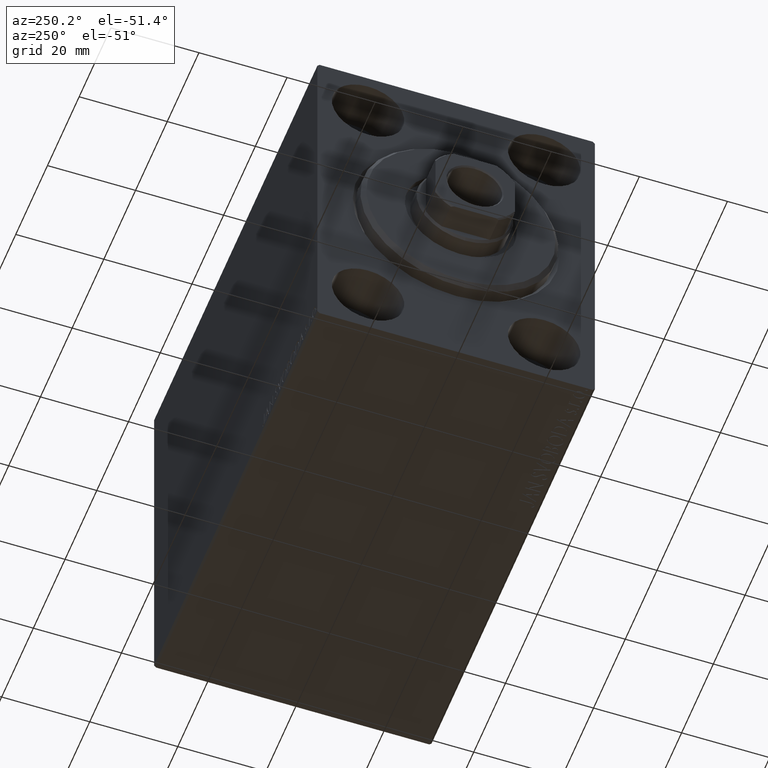
[diagram: clean part render]
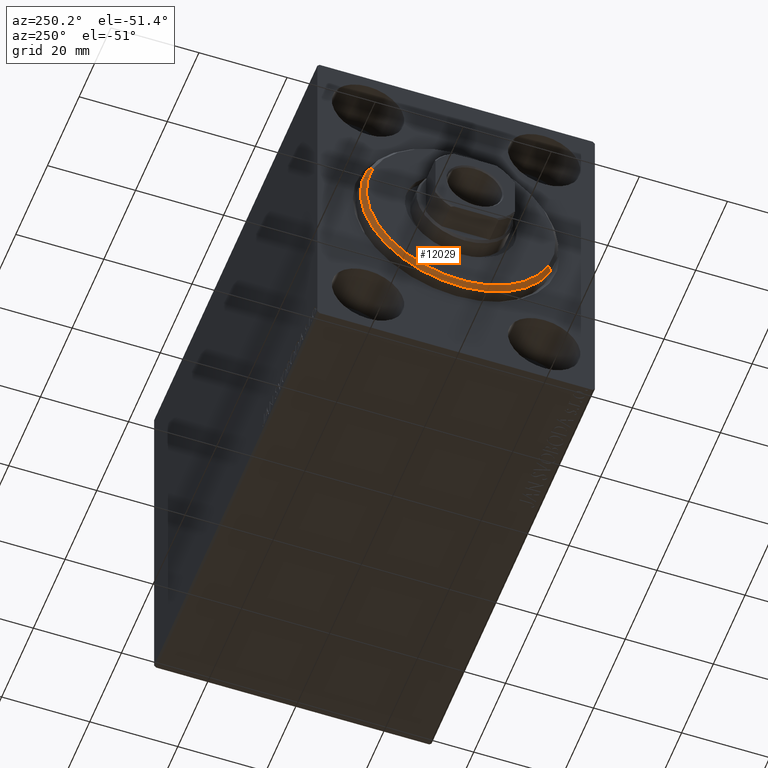
[diagram: same view with one face highlighted and labeled with its STEP entity id]
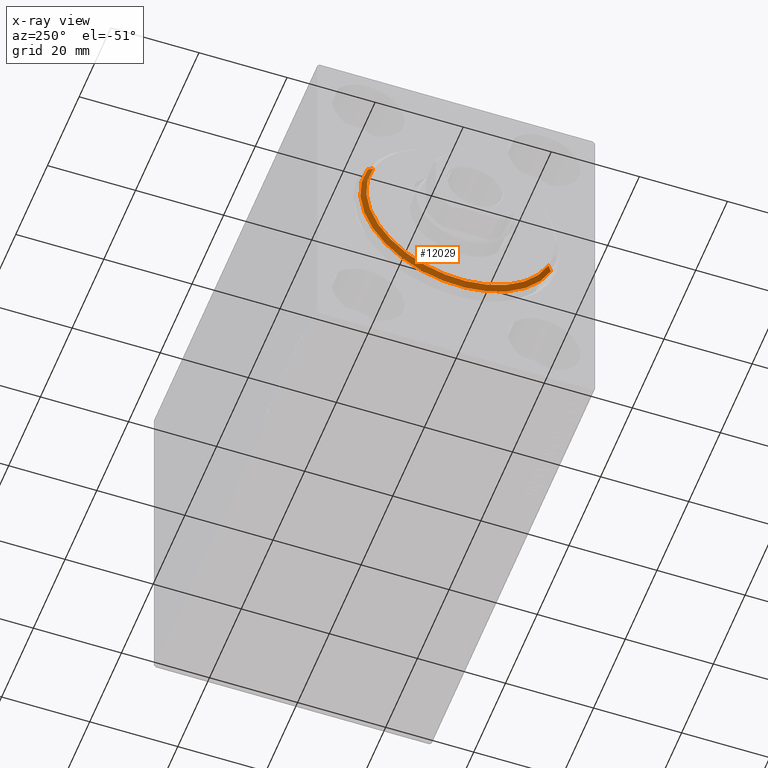
[diagram: x-ray of the same camera — body ghosted, the highlighted face saturated]
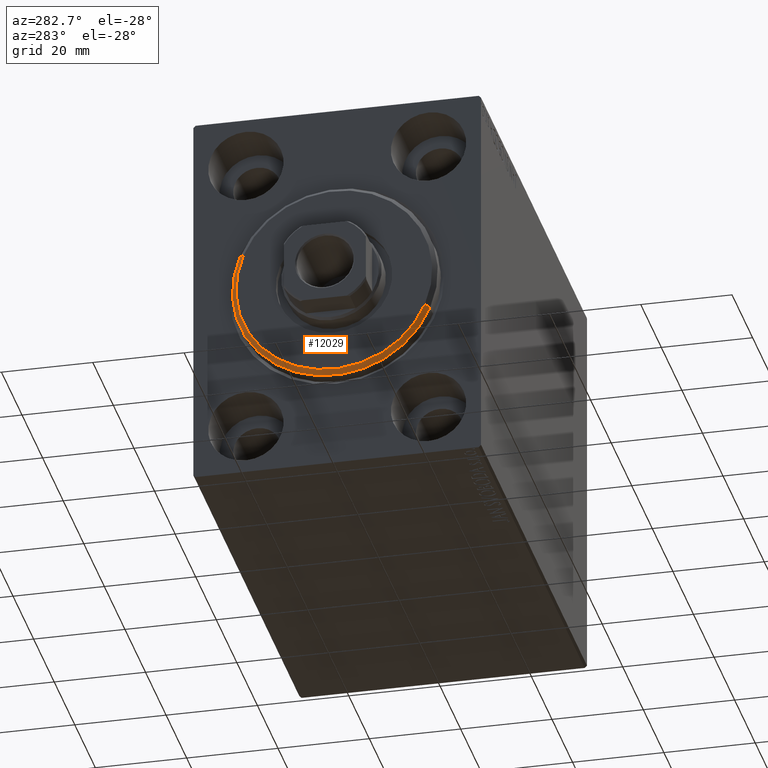
[diagram: same view with one face highlighted and labeled with its STEP entity id]
A machine part, auxiliary view. The second image highlights one B-rep face of the part: STEP entity #12029.
The next image is the same camera in x-ray: the body ghosted, the highlighted face saturated — about 0% of this face is hidden behind the body in this view.
A second angle (auxiliary view) of the same face is appended — the face is thin or edge-on in the first view.
In plain terms, the highlighted conical surface has half-angle 45 deg.
Its self-contained STEP definition (entity closure, byte-faithful):
#21 = ORIENTED_EDGE ( 'NONE', *, *, #23878, .F. ) ;
#1861 = VECTOR ( 'NONE', #33222, 1000.000000000000000 ) ;
#2141 = CIRCLE ( 'NONE', #33212, 22.50000000000000355 ) ;
#3219 = EDGE_CURVE ( 'NONE', #24764, #30745, #6034, .T. ) ;
#4102 = LINE ( 'NONE', #41254, #34624 ) ;
#4124 = CARTESIAN_POINT ( 'NONE',  ( 1.999999999999999112, 0.000000000000000000, 22.50000000000000355 ) ) ;
#4218 = ORIENTED_EDGE ( 'NONE', *, *, #3219, .F. ) ;
#5608 = CARTESIAN_POINT ( 'NONE',  ( 3.000000000000000000, 0.000000000000000000, 21.50000000000000355 ) ) ;
#6034 = CIRCLE ( 'NONE', #25776, 21.50000000000000355 ) ;
#6261 = LINE ( 'NONE', #33436, #1861 ) ;
#7394 = ORIENTED_EDGE ( 'NONE', *, *, #11251, .T. ) ;
#10960 = DIRECTION ( 'NONE',  ( -0.7071067811865487940, 0.000000000000000000, 0.7071067811865463515 ) ) ;
#11251 = EDGE_CURVE ( 'NONE', #24764, #11897, #6261, .T. ) ;
#11897 = VERTEX_POINT ( 'NONE', #40650 ) ;
#12029 = ADVANCED_FACE ( 'NONE', ( #13180 ), #42837, .T. ) ;
#13180 = FACE_OUTER_BOUND ( 'NONE', #38522, .T. ) ;
#15038 = DIRECTION ( 'NONE',  ( 0.000000000000000000, 0.000000000000000000, -1.000000000000000000 ) ) ;
#15962 = DIRECTION ( 'NONE',  ( 0.000000000000000000, 0.000000000000000000, -1.000000000000000000 ) ) ;
#19042 = ORIENTED_EDGE ( 'NONE', *, *, #23776, .F. ) ;
#23124 = DIRECTION ( 'NONE',  ( -1.000000000000000000, 0.000000000000000000, 0.000000000000000000 ) ) ;
#23128 = CARTESIAN_POINT ( 'NONE',  ( 1.999999999999999112, 0.000000000000000000, 0.000000000000000000 ) ) ;
#23776 = EDGE_CURVE ( 'NONE', #30312, #11897, #2141, .T. ) ;
#23878 = EDGE_CURVE ( 'NONE', #30745, #30312, #4102, .T. ) ;
#24764 = VERTEX_POINT ( 'NONE', #43547 ) ;
#25776 = AXIS2_PLACEMENT_3D ( 'NONE', #32539, #35637, #15962 ) ;
#26221 = DIRECTION ( 'NONE',  ( -1.000000000000000000, 0.000000000000000000, 0.000000000000000000 ) ) ;
#26650 = CARTESIAN_POINT ( 'NONE',  ( 3.000000000000000000, 0.000000000000000000, 0.000000000000000000 ) ) ;
#30312 = VERTEX_POINT ( 'NONE', #4124 ) ;
#30745 = VERTEX_POINT ( 'NONE', #5608 ) ;
#32539 = CARTESIAN_POINT ( 'NONE',  ( 3.000000000000000000, 0.000000000000000000, 0.000000000000000000 ) ) ;
#33212 = AXIS2_PLACEMENT_3D ( 'NONE', #23128, #26221, #15038 ) ;
#33222 = DIRECTION ( 'NONE',  ( -0.7071067811865487940, 8.659560562354919300E-17, -0.7071067811865463515 ) ) ;
#33436 = CARTESIAN_POINT ( 'NONE',  ( 3.000000000000000000, 2.632990618166810024E-15, -21.50000000000000355 ) ) ;
#34624 = VECTOR ( 'NONE', #10960, 1000.000000000000000 ) ;
#35637 = DIRECTION ( 'NONE',  ( 1.000000000000000000, -0.000000000000000000, 0.000000000000000000 ) ) ;
#36173 = DIRECTION ( 'NONE',  ( 0.000000000000000000, 0.000000000000000000, 1.000000000000000000 ) ) ;
#38522 = EDGE_LOOP ( 'NONE', ( #4218, #7394, #19042, #21 ) ) ;
#39992 = AXIS2_PLACEMENT_3D ( 'NONE', #26650, #23124, #36173 ) ;
#40650 = CARTESIAN_POINT ( 'NONE',  ( 1.999999999999999112, 2.755455298081545172E-15, -22.50000000000000355 ) ) ;
#41254 = CARTESIAN_POINT ( 'NONE',  ( 3.000000000000000000, 0.000000000000000000, 21.50000000000000355 ) ) ;
#42837 = CONICAL_SURFACE ( 'NONE', #39992, 21.50000000000000355, 0.7853981633974466137 ) ;
#43547 = CARTESIAN_POINT ( 'NONE',  ( 3.000000000000000000, 2.694222958124177598E-15, -21.50000000000000355 ) ) ;